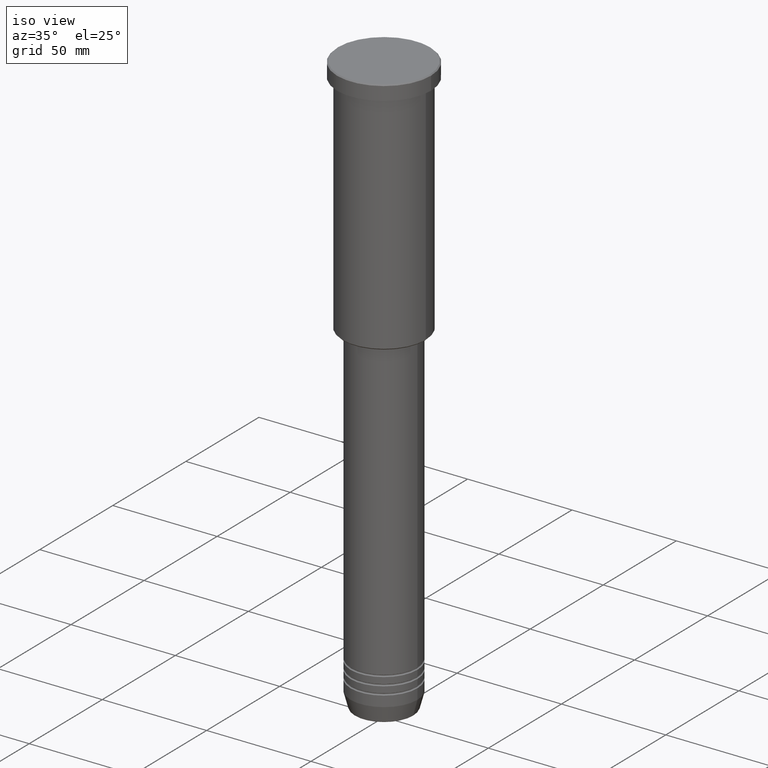
[diagram: clean part render]
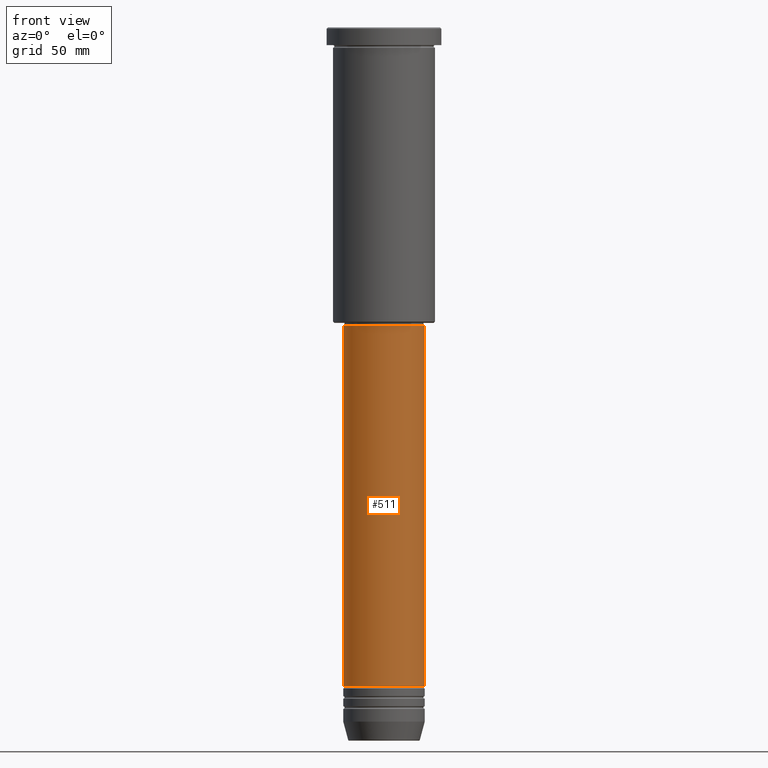
[diagram: tour spotlight — one face highlighted and labeled with its STEP entity id]
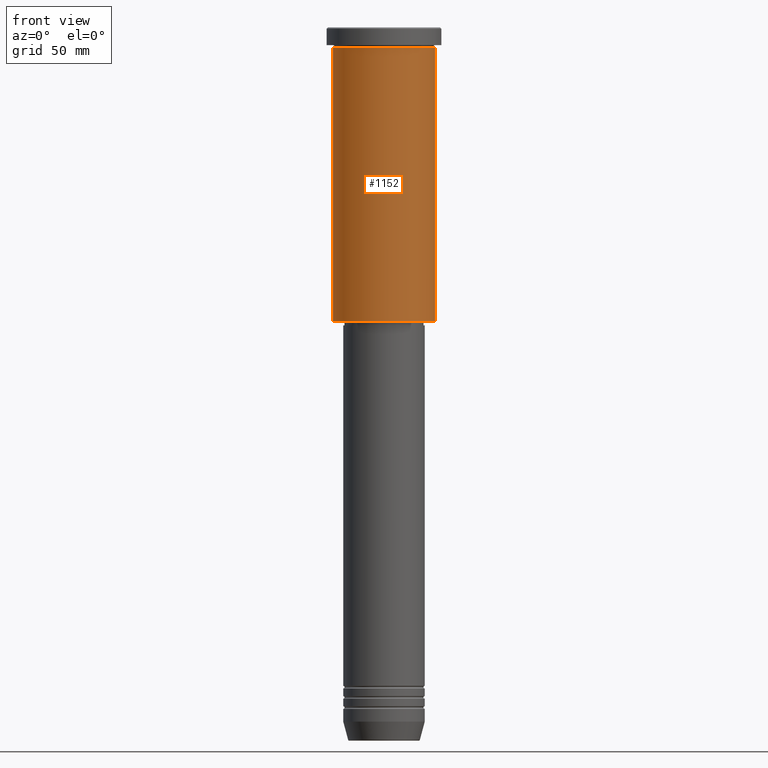
[diagram: tour spotlight — one face highlighted and labeled with its STEP entity id]
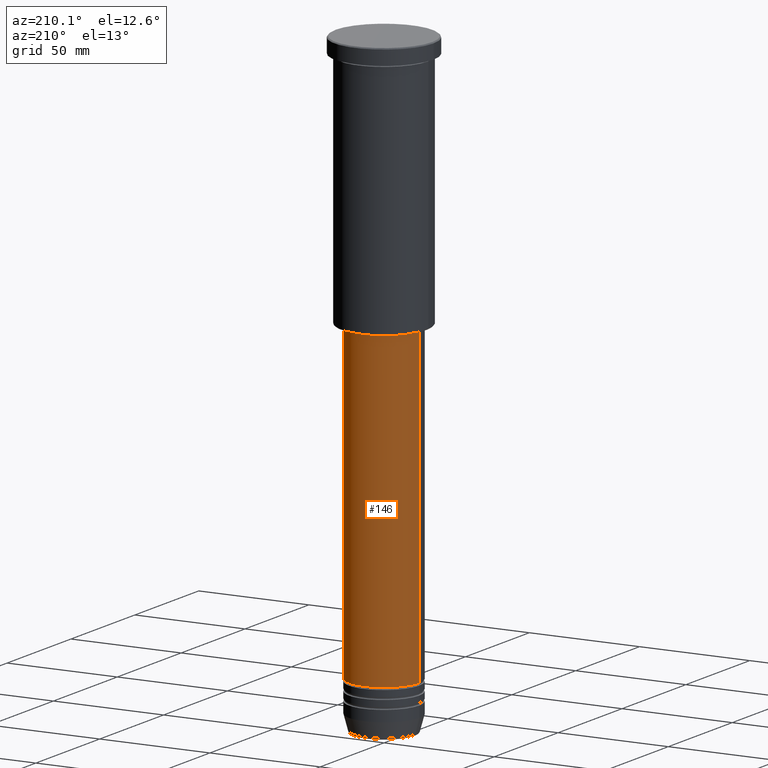
[diagram: tour spotlight — one face highlighted and labeled with its STEP entity id]
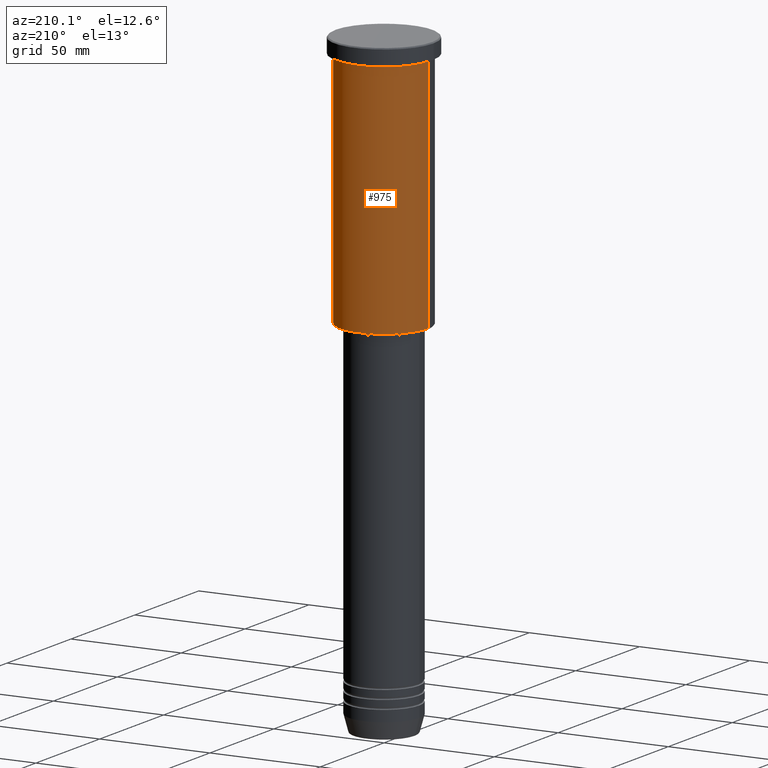
[diagram: tour spotlight — one face highlighted and labeled with its STEP entity id]
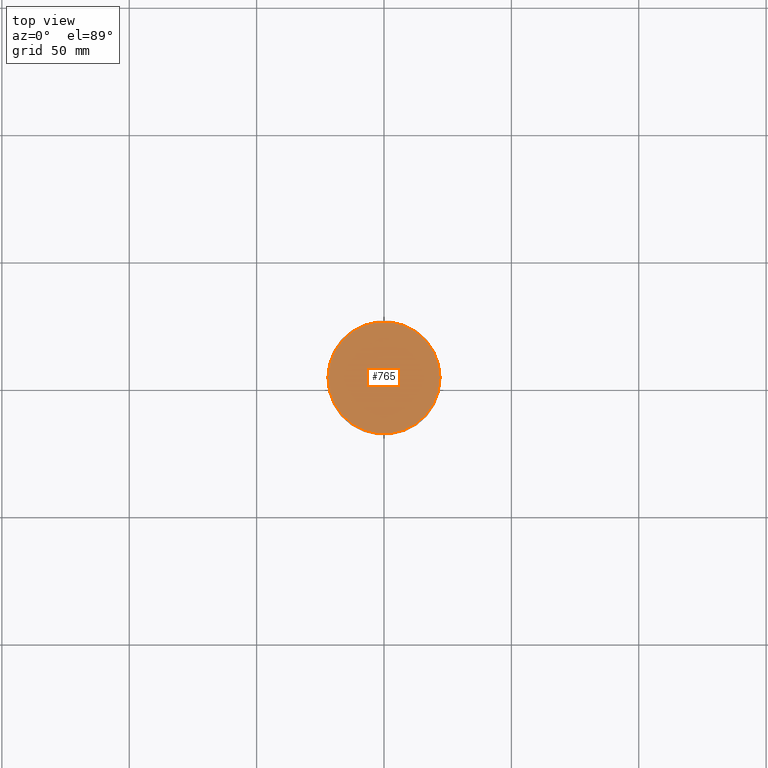
[diagram: tour spotlight — one face highlighted and labeled with its STEP entity id]
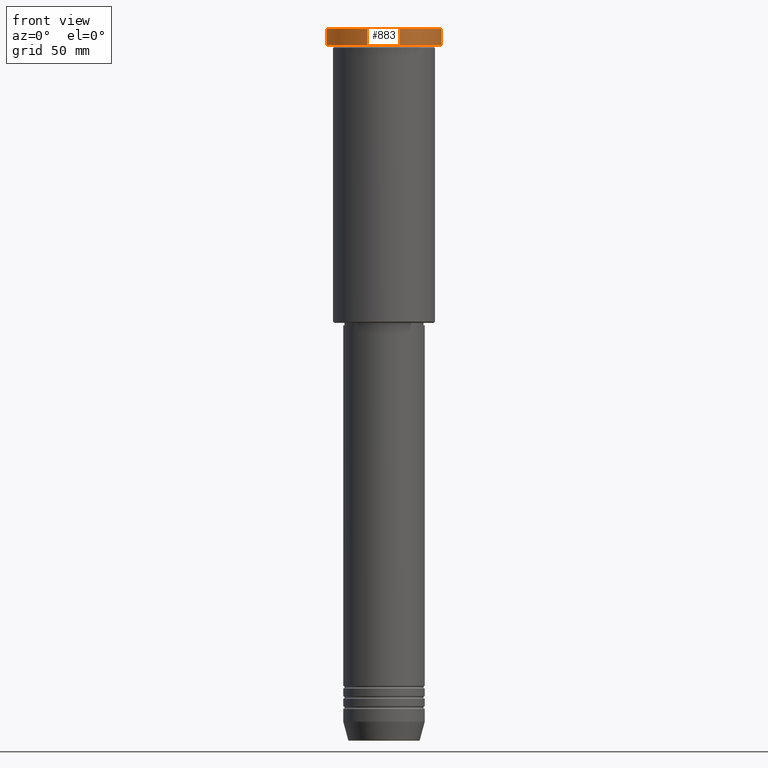
[diagram: tour spotlight — one face highlighted and labeled with its STEP entity id]
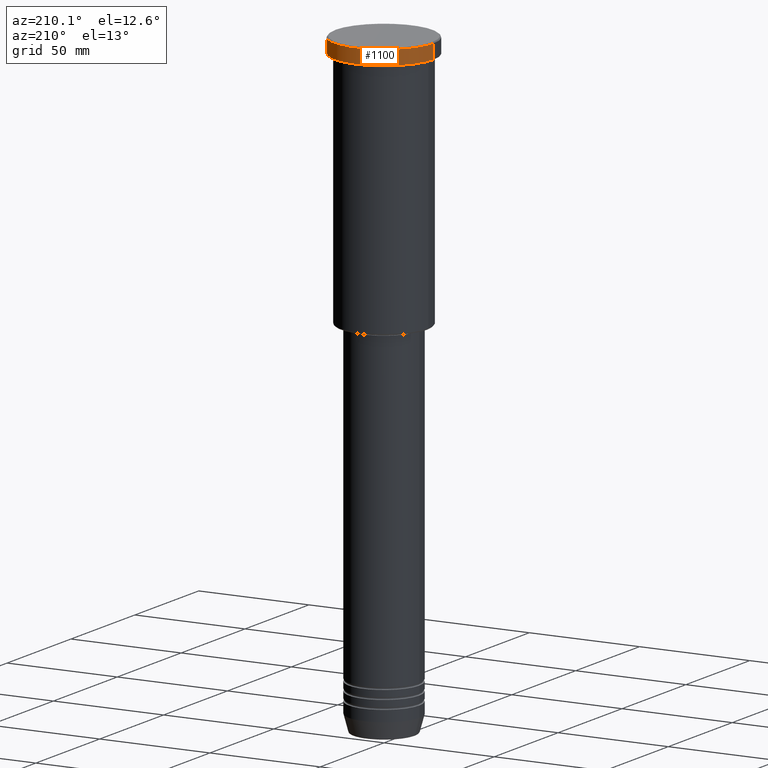
[diagram: tour spotlight — one face highlighted and labeled with its STEP entity id]
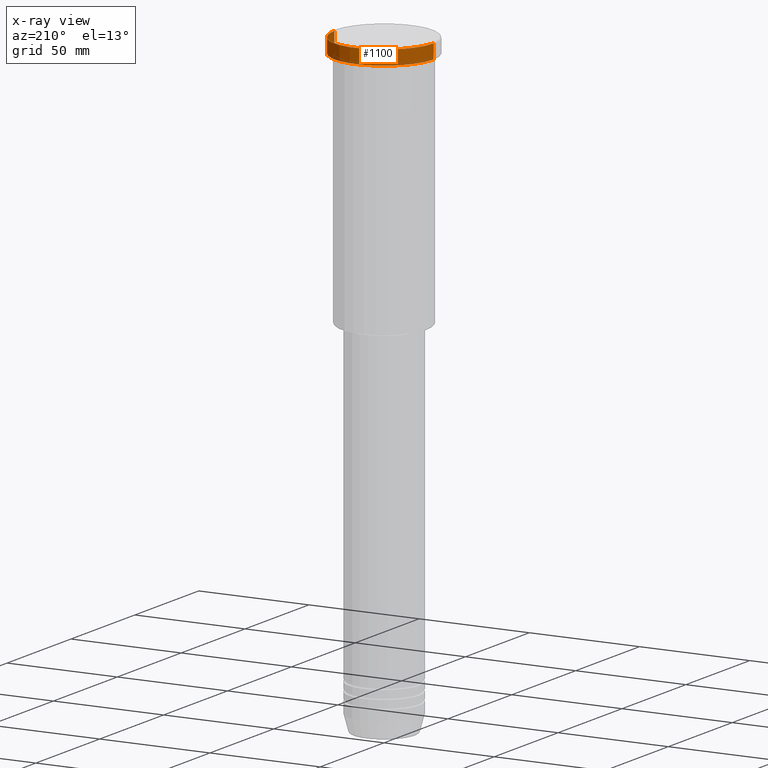
[diagram: x-ray of the same camera — body ghosted, this tour face saturated]
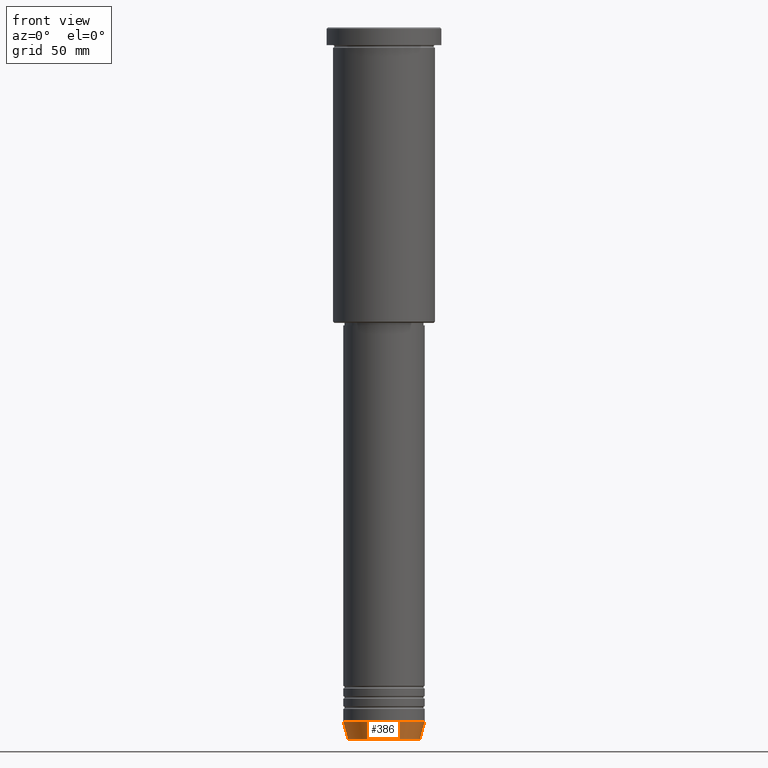
[diagram: tour spotlight — one face highlighted and labeled with its STEP entity id]
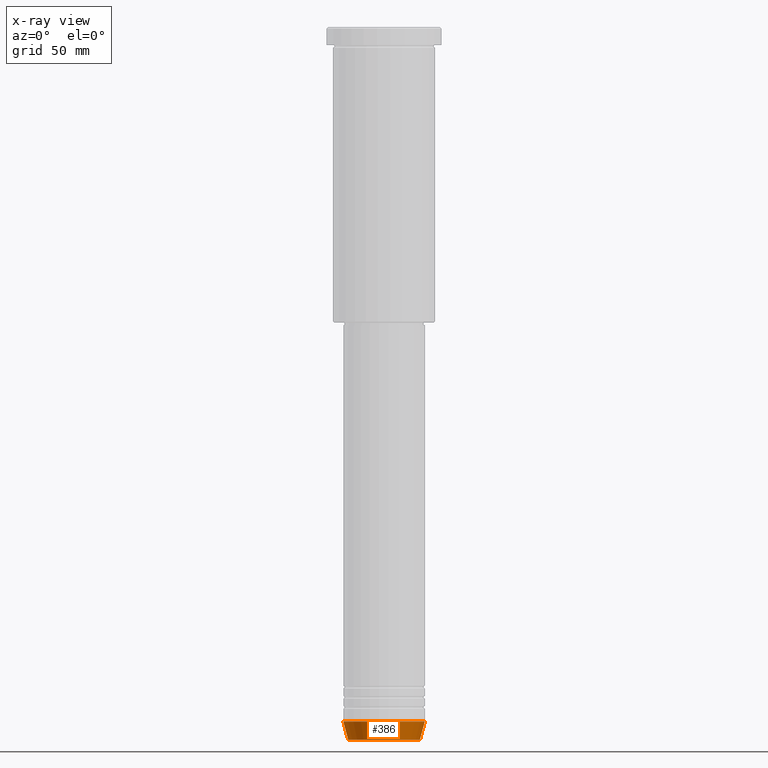
[diagram: x-ray of the same camera — body ghosted, this tour face saturated]
A machine part: a face-by-face anatomy tour. The part has 43 B-rep faces; the first image is the clean iso view, then the 8 largest visible faces are spotlighted one at a time (largest first), each with its STEP entity span.

Face 1 — front view, entity #511. In plain terms, the highlighted cylindrical surface (partial cylindrical patch) has radius 16 mm, axis along (-0, -0, 1).
Definition (entity closure, byte-faithful):
#4 = CIRCLE ( 'NONE', #815, 16.00000000000000000 ) ;
#63 = DIRECTION ( 'NONE',  ( -0.000000000000000000, -0.000000000000000000, 1.000000000000000000 ) ) ;
#136 = EDGE_CURVE ( 'NONE', #949, #867, #303, .T. ) ;
#165 = DIRECTION ( 'NONE',  ( 1.000000000000000000, 0.000000000000000000, 0.000000000000000000 ) ) ;
#168 = CARTESIAN_POINT ( 'NONE',  ( 16.00000000000000000, 0.000000000000000000, 0.000000000000000000 ) ) ;
#224 = CIRCLE ( 'NONE', #877, 16.00000000000000000 ) ;
#232 = CARTESIAN_POINT ( 'NONE',  ( -16.00000000000000000, 1.959434878635765131E-15, -258.5000000000000000 ) ) ;
#303 = LINE ( 'NONE', #807, #856 ) ;
#316 = AXIS2_PLACEMENT_3D ( 'NONE', #726, #712, #352 ) ;
#352 = DIRECTION ( 'NONE',  ( 1.000000000000000000, 0.000000000000000000, 0.000000000000000000 ) ) ;
#356 = EDGE_CURVE ( 'NONE', #949, #398, #4, .T. ) ;
#357 = FACE_OUTER_BOUND ( 'NONE', #799, .T. ) ;
#397 = DIRECTION ( 'NONE',  ( 1.000000000000000000, 0.000000000000000000, 0.000000000000000000 ) ) ;
#398 = VERTEX_POINT ( 'NONE', #963 ) ;
#445 = EDGE_CURVE ( 'NONE', #867, #687, #224, .T. ) ;
#511 = ADVANCED_FACE ( 'NONE', ( #357 ), #1086, .T. ) ;
#517 = LINE ( 'NONE', #168, #632 ) ;
#567 = ORIENTED_EDGE ( 'NONE', *, *, #1121, .T. ) ;
#580 = CARTESIAN_POINT ( 'NONE',  ( 0.000000000000000000, 0.000000000000000000, -258.5000000000000000 ) ) ;
#632 = VECTOR ( 'NONE', #785, 1000.000000000000000 ) ;
#659 = DIRECTION ( 'NONE',  ( -0.000000000000000000, -0.000000000000000000, 1.000000000000000000 ) ) ;
#682 = CARTESIAN_POINT ( 'NONE',  ( -16.00000000000000000, 1.959434878635765131E-15, -117.0000000000000000 ) ) ;
#687 = VERTEX_POINT ( 'NONE', #1007 ) ;
#712 = DIRECTION ( 'NONE',  ( -0.000000000000000000, -0.000000000000000000, 1.000000000000000000 ) ) ;
#726 = CARTESIAN_POINT ( 'NONE',  ( 0.000000000000000000, 0.000000000000000000, 0.000000000000000000 ) ) ;
#785 = DIRECTION ( 'NONE',  ( -0.000000000000000000, -0.000000000000000000, 1.000000000000000000 ) ) ;
#786 = CARTESIAN_POINT ( 'NONE',  ( 0.000000000000000000, 0.000000000000000000, -117.0000000000000000 ) ) ;
#799 = EDGE_LOOP ( 'NONE', ( #849, #1177, #567, #826 ) ) ;
#807 = CARTESIAN_POINT ( 'NONE',  ( -16.00000000000000000, 1.959434878635765131E-15, 0.000000000000000000 ) ) ;
#815 = AXIS2_PLACEMENT_3D ( 'NONE', #580, #63, #397 ) ;
#826 = ORIENTED_EDGE ( 'NONE', *, *, #445, .F. ) ;
#849 = ORIENTED_EDGE ( 'NONE', *, *, #136, .F. ) ;
#856 = VECTOR ( 'NONE', #659, 1000.000000000000000 ) ;
#867 = VERTEX_POINT ( 'NONE', #682 ) ;
#877 = AXIS2_PLACEMENT_3D ( 'NONE', #786, #1164, #165 ) ;
#949 = VERTEX_POINT ( 'NONE', #232 ) ;
#963 = CARTESIAN_POINT ( 'NONE',  ( 16.00000000000000000, 0.000000000000000000, -258.5000000000000000 ) ) ;
#1007 = CARTESIAN_POINT ( 'NONE',  ( 16.00000000000000000, 0.000000000000000000, -117.0000000000000000 ) ) ;
#1086 = CYLINDRICAL_SURFACE ( 'NONE', #316, 16.00000000000000000 ) ;
#1121 = EDGE_CURVE ( 'NONE', #398, #687, #517, .T. ) ;
#1164 = DIRECTION ( 'NONE',  ( -0.000000000000000000, -0.000000000000000000, 1.000000000000000000 ) ) ;
#1177 = ORIENTED_EDGE ( 'NONE', *, *, #356, .T. ) ;

Face 2 — front view, entity #1152. In plain terms, the highlighted cylindrical surface (partial cylindrical patch) has radius 20 mm, axis along (-0, -0, 1).
Definition (entity closure, byte-faithful):
#6 = CIRCLE ( 'NONE', #762, 20.00000000000000000 ) ;
#42 = EDGE_LOOP ( 'NONE', ( #668, #539, #832, #245 ) ) ;
#155 = CIRCLE ( 'NONE', #1110, 20.00000000000000355 ) ;
#157 = EDGE_CURVE ( 'NONE', #363, #1059, #155, .T. ) ;
#167 = VERTEX_POINT ( 'NONE', #280 ) ;
#245 = ORIENTED_EDGE ( 'NONE', *, *, #869, .F. ) ;
#280 = CARTESIAN_POINT ( 'NONE',  ( 20.00000000000000000, 0.000000000000000000, -7.999999999999994671 ) ) ;
#285 = DIRECTION ( 'NONE',  ( -0.000000000000000000, -0.000000000000000000, 1.000000000000000000 ) ) ;
#328 = DIRECTION ( 'NONE',  ( -0.000000000000000000, -0.000000000000000000, 1.000000000000000000 ) ) ;
#336 = CARTESIAN_POINT ( 'NONE',  ( -20.00000000000000000, 2.449293598294706513E-15, -7.999999999999994671 ) ) ;
#339 = DIRECTION ( 'NONE',  ( -0.000000000000000000, -0.000000000000000000, 1.000000000000000000 ) ) ;
#363 = VERTEX_POINT ( 'NONE', #940 ) ;
#407 = VECTOR ( 'NONE', #339, 1000.000000000000000 ) ;
#425 = CARTESIAN_POINT ( 'NONE',  ( 20.00000000000000355, 0.000000000000000000, -115.4999999999999432 ) ) ;
#429 = LINE ( 'NONE', #631, #407 ) ;
#449 = CARTESIAN_POINT ( 'NONE',  ( 0.000000000000000000, 0.000000000000000000, 0.000000000000000000 ) ) ;
#467 = DIRECTION ( 'NONE',  ( -0.000000000000000000, -0.000000000000000000, 1.000000000000000000 ) ) ;
#535 = CARTESIAN_POINT ( 'NONE',  ( 0.000000000000000000, 0.000000000000000000, -115.4999999999999432 ) ) ;
#539 = ORIENTED_EDGE ( 'NONE', *, *, #157, .T. ) ;
#611 = AXIS2_PLACEMENT_3D ( 'NONE', #449, #467, #1005 ) ;
#631 = CARTESIAN_POINT ( 'NONE',  ( -20.00000000000000355, 2.449293598294706907E-15, 0.000000000000000000 ) ) ;
#668 = ORIENTED_EDGE ( 'NONE', *, *, #1081, .F. ) ;
#762 = AXIS2_PLACEMENT_3D ( 'NONE', #943, #328, #1129 ) ;
#770 = LINE ( 'NONE', #1143, #1054 ) ;
#802 = FACE_OUTER_BOUND ( 'NONE', #42, .T. ) ;
#832 = ORIENTED_EDGE ( 'NONE', *, *, #1006, .T. ) ;
#850 = DIRECTION ( 'NONE',  ( -0.000000000000000000, -0.000000000000000000, 1.000000000000000000 ) ) ;
#868 = VERTEX_POINT ( 'NONE', #336 ) ;
#869 = EDGE_CURVE ( 'NONE', #868, #167, #6, .T. ) ;
#917 = CYLINDRICAL_SURFACE ( 'NONE', #611, 20.00000000000000355 ) ;
#940 = CARTESIAN_POINT ( 'NONE',  ( -20.00000000000000355, 2.449293598294706907E-15, -115.4999999999999432 ) ) ;
#943 = CARTESIAN_POINT ( 'NONE',  ( 0.000000000000000000, 0.000000000000000000, -7.999999999999994671 ) ) ;
#1005 = DIRECTION ( 'NONE',  ( 1.000000000000000000, 0.000000000000000000, 0.000000000000000000 ) ) ;
#1006 = EDGE_CURVE ( 'NONE', #1059, #167, #770, .T. ) ;
#1054 = VECTOR ( 'NONE', #850, 1000.000000000000000 ) ;
#1059 = VERTEX_POINT ( 'NONE', #425 ) ;
#1081 = EDGE_CURVE ( 'NONE', #363, #868, #429, .T. ) ;
#1104 = DIRECTION ( 'NONE',  ( -1.000000000000000000, 0.000000000000000000, 0.000000000000000000 ) ) ;
#1110 = AXIS2_PLACEMENT_3D ( 'NONE', #535, #285, #1104 ) ;
#1129 = DIRECTION ( 'NONE',  ( 1.000000000000000000, 0.000000000000000000, 0.000000000000000000 ) ) ;
#1143 = CARTESIAN_POINT ( 'NONE',  ( 20.00000000000000355, 0.000000000000000000, 0.000000000000000000 ) ) ;
#1152 = ADVANCED_FACE ( 'NONE', ( #802 ), #917, .T. ) ;

Face 3 — auxiliary view, entity #146. In plain terms, the highlighted cylindrical surface (partial cylindrical patch) has radius 16 mm, axis along (-0, -0, 1).
Definition (entity closure, byte-faithful):
#77 = ORIENTED_EDGE ( 'NONE', *, *, #236, .T. ) ;
#98 = AXIS2_PLACEMENT_3D ( 'NONE', #444, #540, #359 ) ;
#130 = ORIENTED_EDGE ( 'NONE', *, *, #1075, .F. ) ;
#136 = EDGE_CURVE ( 'NONE', #949, #867, #303, .T. ) ;
#146 = ADVANCED_FACE ( 'NONE', ( #814 ), #375, .T. ) ;
#168 = CARTESIAN_POINT ( 'NONE',  ( 16.00000000000000000, 0.000000000000000000, 0.000000000000000000 ) ) ;
#213 = DIRECTION ( 'NONE',  ( -0.000000000000000000, -0.000000000000000000, 1.000000000000000000 ) ) ;
#232 = CARTESIAN_POINT ( 'NONE',  ( -16.00000000000000000, 1.959434878635765131E-15, -258.5000000000000000 ) ) ;
#236 = EDGE_CURVE ( 'NONE', #398, #949, #315, .T. ) ;
#259 = AXIS2_PLACEMENT_3D ( 'NONE', #1169, #1085, #1154 ) ;
#303 = LINE ( 'NONE', #807, #856 ) ;
#315 = CIRCLE ( 'NONE', #98, 16.00000000000000000 ) ;
#359 = DIRECTION ( 'NONE',  ( 1.000000000000000000, 0.000000000000000000, 0.000000000000000000 ) ) ;
#375 = CYLINDRICAL_SURFACE ( 'NONE', #436, 16.00000000000000000 ) ;
#398 = VERTEX_POINT ( 'NONE', #963 ) ;
#436 = AXIS2_PLACEMENT_3D ( 'NONE', #1022, #213, #466 ) ;
#444 = CARTESIAN_POINT ( 'NONE',  ( 0.000000000000000000, 0.000000000000000000, -258.5000000000000000 ) ) ;
#466 = DIRECTION ( 'NONE',  ( 1.000000000000000000, 0.000000000000000000, 0.000000000000000000 ) ) ;
#517 = LINE ( 'NONE', #168, #632 ) ;
#532 = CIRCLE ( 'NONE', #259, 16.00000000000000000 ) ;
#540 = DIRECTION ( 'NONE',  ( -0.000000000000000000, -0.000000000000000000, 1.000000000000000000 ) ) ;
#632 = VECTOR ( 'NONE', #785, 1000.000000000000000 ) ;
#659 = DIRECTION ( 'NONE',  ( -0.000000000000000000, -0.000000000000000000, 1.000000000000000000 ) ) ;
#682 = CARTESIAN_POINT ( 'NONE',  ( -16.00000000000000000, 1.959434878635765131E-15, -117.0000000000000000 ) ) ;
#687 = VERTEX_POINT ( 'NONE', #1007 ) ;
#766 = ORIENTED_EDGE ( 'NONE', *, *, #136, .T. ) ;
#785 = DIRECTION ( 'NONE',  ( -0.000000000000000000, -0.000000000000000000, 1.000000000000000000 ) ) ;
#807 = CARTESIAN_POINT ( 'NONE',  ( -16.00000000000000000, 1.959434878635765131E-15, 0.000000000000000000 ) ) ;
#814 = FACE_OUTER_BOUND ( 'NONE', #1114, .T. ) ;
#841 = ORIENTED_EDGE ( 'NONE', *, *, #1121, .F. ) ;
#856 = VECTOR ( 'NONE', #659, 1000.000000000000000 ) ;
#867 = VERTEX_POINT ( 'NONE', #682 ) ;
#949 = VERTEX_POINT ( 'NONE', #232 ) ;
#963 = CARTESIAN_POINT ( 'NONE',  ( 16.00000000000000000, 0.000000000000000000, -258.5000000000000000 ) ) ;
#1007 = CARTESIAN_POINT ( 'NONE',  ( 16.00000000000000000, 0.000000000000000000, -117.0000000000000000 ) ) ;
#1022 = CARTESIAN_POINT ( 'NONE',  ( 0.000000000000000000, 0.000000000000000000, 0.000000000000000000 ) ) ;
#1075 = EDGE_CURVE ( 'NONE', #687, #867, #532, .T. ) ;
#1085 = DIRECTION ( 'NONE',  ( -0.000000000000000000, -0.000000000000000000, 1.000000000000000000 ) ) ;
#1114 = EDGE_LOOP ( 'NONE', ( #77, #766, #130, #841 ) ) ;
#1121 = EDGE_CURVE ( 'NONE', #398, #687, #517, .T. ) ;
#1154 = DIRECTION ( 'NONE',  ( 1.000000000000000000, 0.000000000000000000, 0.000000000000000000 ) ) ;
#1169 = CARTESIAN_POINT ( 'NONE',  ( 0.000000000000000000, 0.000000000000000000, -117.0000000000000000 ) ) ;

Face 4 — auxiliary view, entity #975. In plain terms, the highlighted cylindrical surface (partial cylindrical patch) has radius 20 mm, axis along (-0, -0, 1).
Definition (entity closure, byte-faithful):
#47 = DIRECTION ( 'NONE',  ( 1.000000000000000000, 0.000000000000000000, 0.000000000000000000 ) ) ;
#87 = DIRECTION ( 'NONE',  ( -0.000000000000000000, -0.000000000000000000, 1.000000000000000000 ) ) ;
#141 = AXIS2_PLACEMENT_3D ( 'NONE', #962, #508, #47 ) ;
#152 = CYLINDRICAL_SURFACE ( 'NONE', #141, 20.00000000000000355 ) ;
#166 = EDGE_CURVE ( 'NONE', #167, #868, #933, .T. ) ;
#167 = VERTEX_POINT ( 'NONE', #280 ) ;
#212 = DIRECTION ( 'NONE',  ( 1.000000000000000000, 0.000000000000000000, 0.000000000000000000 ) ) ;
#280 = CARTESIAN_POINT ( 'NONE',  ( 20.00000000000000000, 0.000000000000000000, -7.999999999999994671 ) ) ;
#299 = CIRCLE ( 'NONE', #629, 20.00000000000000355 ) ;
#329 = EDGE_CURVE ( 'NONE', #1059, #363, #299, .T. ) ;
#336 = CARTESIAN_POINT ( 'NONE',  ( -20.00000000000000000, 2.449293598294706513E-15, -7.999999999999994671 ) ) ;
#339 = DIRECTION ( 'NONE',  ( -0.000000000000000000, -0.000000000000000000, 1.000000000000000000 ) ) ;
#363 = VERTEX_POINT ( 'NONE', #940 ) ;
#391 = DIRECTION ( 'NONE',  ( -0.000000000000000000, -0.000000000000000000, 1.000000000000000000 ) ) ;
#407 = VECTOR ( 'NONE', #339, 1000.000000000000000 ) ;
#425 = CARTESIAN_POINT ( 'NONE',  ( 20.00000000000000355, 0.000000000000000000, -115.4999999999999432 ) ) ;
#429 = LINE ( 'NONE', #631, #407 ) ;
#508 = DIRECTION ( 'NONE',  ( -0.000000000000000000, -0.000000000000000000, 1.000000000000000000 ) ) ;
#509 = CARTESIAN_POINT ( 'NONE',  ( 0.000000000000000000, 0.000000000000000000, -115.4999999999999432 ) ) ;
#523 = ORIENTED_EDGE ( 'NONE', *, *, #329, .T. ) ;
#605 = ORIENTED_EDGE ( 'NONE', *, *, #1006, .F. ) ;
#629 = AXIS2_PLACEMENT_3D ( 'NONE', #509, #391, #1150 ) ;
#631 = CARTESIAN_POINT ( 'NONE',  ( -20.00000000000000355, 2.449293598294706907E-15, 0.000000000000000000 ) ) ;
#714 = CARTESIAN_POINT ( 'NONE',  ( 0.000000000000000000, 0.000000000000000000, -7.999999999999994671 ) ) ;
#770 = LINE ( 'NONE', #1143, #1054 ) ;
#850 = DIRECTION ( 'NONE',  ( -0.000000000000000000, -0.000000000000000000, 1.000000000000000000 ) ) ;
#868 = VERTEX_POINT ( 'NONE', #336 ) ;
#933 = CIRCLE ( 'NONE', #967, 20.00000000000000000 ) ;
#940 = CARTESIAN_POINT ( 'NONE',  ( -20.00000000000000355, 2.449293598294706907E-15, -115.4999999999999432 ) ) ;
#944 = EDGE_LOOP ( 'NONE', ( #523, #1064, #994, #605 ) ) ;
#962 = CARTESIAN_POINT ( 'NONE',  ( 0.000000000000000000, 0.000000000000000000, 0.000000000000000000 ) ) ;
#967 = AXIS2_PLACEMENT_3D ( 'NONE', #714, #87, #212 ) ;
#975 = ADVANCED_FACE ( 'NONE', ( #1135 ), #152, .T. ) ;
#994 = ORIENTED_EDGE ( 'NONE', *, *, #166, .F. ) ;
#1006 = EDGE_CURVE ( 'NONE', #1059, #167, #770, .T. ) ;
#1054 = VECTOR ( 'NONE', #850, 1000.000000000000000 ) ;
#1059 = VERTEX_POINT ( 'NONE', #425 ) ;
#1064 = ORIENTED_EDGE ( 'NONE', *, *, #1081, .T. ) ;
#1081 = EDGE_CURVE ( 'NONE', #363, #868, #429, .T. ) ;
#1135 = FACE_OUTER_BOUND ( 'NONE', #944, .T. ) ;
#1143 = CARTESIAN_POINT ( 'NONE',  ( 20.00000000000000355, 0.000000000000000000, 0.000000000000000000 ) ) ;
#1150 = DIRECTION ( 'NONE',  ( -1.000000000000000000, 0.000000000000000000, 0.000000000000000000 ) ) ;

Face 5 — top view, entity #765. In plain terms, the highlighted planar face has unit normal (0, -0, 1).
Definition (entity closure, byte-faithful):
#270 = VERTEX_POINT ( 'NONE', #626 ) ;
#310 = DIRECTION ( 'NONE',  ( 0.000000000000000000, -0.000000000000000000, 1.000000000000000000 ) ) ;
#331 = EDGE_LOOP ( 'NONE', ( #1061, #1171 ) ) ;
#377 = CARTESIAN_POINT ( 'NONE',  ( 0.000000000000000000, 0.000000000000000000, 0.000000000000000000 ) ) ;
#469 = CARTESIAN_POINT ( 'NONE',  ( -22.00000000000004619, 0.000000000000000000, 0.000000000000000000 ) ) ;
#477 = FACE_OUTER_BOUND ( 'NONE', #331, .T. ) ;
#481 = DIRECTION ( 'NONE',  ( 1.000000000000000000, 0.000000000000000000, 0.000000000000000000 ) ) ;
#554 = CIRCLE ( 'NONE', #939, 22.00000000000004619 ) ;
#561 = DIRECTION ( 'NONE',  ( -0.000000000000000000, -0.000000000000000000, 1.000000000000000000 ) ) ;
#626 = CARTESIAN_POINT ( 'NONE',  ( 22.00000000000004619, 2.724839128102864146E-15, 0.000000000000000000 ) ) ;
#642 = VERTEX_POINT ( 'NONE', #469 ) ;
#683 = EDGE_CURVE ( 'NONE', #270, #642, #744, .T. ) ;
#744 = CIRCLE ( 'NONE', #1070, 22.00000000000004619 ) ;
#746 = DIRECTION ( 'NONE',  ( 1.000000000000000000, 0.000000000000000000, 0.000000000000000000 ) ) ;
#765 = ADVANCED_FACE ( 'NONE', ( #477 ), #822, .T. ) ;
#822 = PLANE ( 'NONE',  #1038 ) ;
#904 = CARTESIAN_POINT ( 'NONE',  ( 0.000000000000000000, 0.000000000000000000, 0.000000000000000000 ) ) ;
#924 = DIRECTION ( 'NONE',  ( 1.000000000000000000, 0.000000000000000000, 0.000000000000000000 ) ) ;
#939 = AXIS2_PLACEMENT_3D ( 'NONE', #904, #1094, #481 ) ;
#1038 = AXIS2_PLACEMENT_3D ( 'NONE', #1183, #310, #746 ) ;
#1061 = ORIENTED_EDGE ( 'NONE', *, *, #1175, .T. ) ;
#1070 = AXIS2_PLACEMENT_3D ( 'NONE', #377, #561, #924 ) ;
#1094 = DIRECTION ( 'NONE',  ( -0.000000000000000000, -0.000000000000000000, 1.000000000000000000 ) ) ;
#1171 = ORIENTED_EDGE ( 'NONE', *, *, #683, .T. ) ;
#1175 = EDGE_CURVE ( 'NONE', #642, #270, #554, .T. ) ;
#1183 = CARTESIAN_POINT ( 'NONE',  ( 0.000000000000000000, 0.000000000000000000, 0.000000000000000000 ) ) ;

Face 6 — front view, entity #883. In plain terms, the highlighted cylindrical surface (partial cylindrical patch) has radius 22.5 mm, axis along (-0, -0, 1).
Definition (entity closure, byte-faithful):
#29 = AXIS2_PLACEMENT_3D ( 'NONE', #821, #476, #190 ) ;
#66 = CARTESIAN_POINT ( 'NONE',  ( 22.50000000000000000, 0.000000000000000000, 0.000000000000000000 ) ) ;
#89 = VERTEX_POINT ( 'NONE', #1004 ) ;
#190 = DIRECTION ( 'NONE',  ( 1.000000000000000000, 0.000000000000000000, 0.000000000000000000 ) ) ;
#201 = AXIS2_PLACEMENT_3D ( 'NONE', #243, #591, #323 ) ;
#225 = CIRCLE ( 'NONE', #29, 22.50000000000000000 ) ;
#243 = CARTESIAN_POINT ( 'NONE',  ( 0.000000000000000000, 0.000000000000000000, -0.4999999999999379940 ) ) ;
#256 = VECTOR ( 'NONE', #948, 1000.000000000000000 ) ;
#277 = AXIS2_PLACEMENT_3D ( 'NONE', #871, #402, #495 ) ;
#291 = ORIENTED_EDGE ( 'NONE', *, *, #910, .F. ) ;
#323 = DIRECTION ( 'NONE',  ( 1.000000000000000000, 0.000000000000000000, 0.000000000000000000 ) ) ;
#372 = ORIENTED_EDGE ( 'NONE', *, *, #675, .T. ) ;
#373 = VECTOR ( 'NONE', #978, 1000.000000000000000 ) ;
#402 = DIRECTION ( 'NONE',  ( -0.000000000000000000, -0.000000000000000000, 1.000000000000000000 ) ) ;
#476 = DIRECTION ( 'NONE',  ( -0.000000000000000000, -0.000000000000000000, 1.000000000000000000 ) ) ;
#489 = CARTESIAN_POINT ( 'NONE',  ( -22.50000000000000000, 2.755455298081544778E-15, -0.4999999999999379940 ) ) ;
#495 = DIRECTION ( 'NONE',  ( 1.000000000000000000, 0.000000000000000000, 0.000000000000000000 ) ) ;
#503 = FACE_OUTER_BOUND ( 'NONE', #1141, .T. ) ;
#584 = ORIENTED_EDGE ( 'NONE', *, *, #1042, .T. ) ;
#591 = DIRECTION ( 'NONE',  ( 0.000000000000000000, 0.000000000000000000, -1.000000000000000000 ) ) ;
#599 = CARTESIAN_POINT ( 'NONE',  ( -22.50000000000000000, 2.755455298081544778E-15, 0.000000000000000000 ) ) ;
#675 = EDGE_CURVE ( 'NONE', #89, #772, #225, .T. ) ;
#772 = VERTEX_POINT ( 'NONE', #830 ) ;
#779 = CIRCLE ( 'NONE', #201, 22.50000000000000000 ) ;
#805 = VERTEX_POINT ( 'NONE', #489 ) ;
#821 = CARTESIAN_POINT ( 'NONE',  ( 0.000000000000000000, 0.000000000000000000, -6.999999999999995559 ) ) ;
#830 = CARTESIAN_POINT ( 'NONE',  ( 22.50000000000000000, 0.000000000000000000, -6.999999999999995559 ) ) ;
#860 = CYLINDRICAL_SURFACE ( 'NONE', #277, 22.50000000000000000 ) ;
#871 = CARTESIAN_POINT ( 'NONE',  ( 0.000000000000000000, 0.000000000000000000, 0.000000000000000000 ) ) ;
#883 = ADVANCED_FACE ( 'NONE', ( #503 ), #860, .T. ) ;
#889 = LINE ( 'NONE', #66, #373 ) ;
#896 = EDGE_CURVE ( 'NONE', #1027, #805, #779, .T. ) ;
#910 = EDGE_CURVE ( 'NONE', #89, #805, #1051, .T. ) ;
#948 = DIRECTION ( 'NONE',  ( -0.000000000000000000, -0.000000000000000000, 1.000000000000000000 ) ) ;
#978 = DIRECTION ( 'NONE',  ( -0.000000000000000000, -0.000000000000000000, 1.000000000000000000 ) ) ;
#1004 = CARTESIAN_POINT ( 'NONE',  ( -22.50000000000000000, 2.755455298081544778E-15, -6.999999999999995559 ) ) ;
#1027 = VERTEX_POINT ( 'NONE', #1073 ) ;
#1042 = EDGE_CURVE ( 'NONE', #772, #1027, #889, .T. ) ;
#1051 = LINE ( 'NONE', #599, #256 ) ;
#1073 = CARTESIAN_POINT ( 'NONE',  ( 22.50000000000000000, 0.000000000000000000, -0.4999999999999379940 ) ) ;
#1131 = ORIENTED_EDGE ( 'NONE', *, *, #896, .T. ) ;
#1141 = EDGE_LOOP ( 'NONE', ( #291, #372, #584, #1131 ) ) ;

Face 7 — auxiliary view, entity #1100. An x-ray twin of the same camera follows (body ghosted, this face saturated) — the face is partly hidden behind the body. In plain terms, the highlighted cylindrical surface (partial cylindrical patch) has radius 22.5 mm, axis along (-0, -0, 1).
Definition (entity closure, byte-faithful):
#23 = CARTESIAN_POINT ( 'NONE',  ( 0.000000000000000000, 0.000000000000000000, -0.4999999999999379940 ) ) ;
#66 = CARTESIAN_POINT ( 'NONE',  ( 22.50000000000000000, 0.000000000000000000, 0.000000000000000000 ) ) ;
#89 = VERTEX_POINT ( 'NONE', #1004 ) ;
#180 = CIRCLE ( 'NONE', #301, 22.50000000000000000 ) ;
#196 = DIRECTION ( 'NONE',  ( 1.000000000000000000, 0.000000000000000000, 0.000000000000000000 ) ) ;
#223 = EDGE_LOOP ( 'NONE', ( #574, #1030, #979, #415 ) ) ;
#249 = DIRECTION ( 'NONE',  ( -0.000000000000000000, -0.000000000000000000, 1.000000000000000000 ) ) ;
#256 = VECTOR ( 'NONE', #948, 1000.000000000000000 ) ;
#267 = CARTESIAN_POINT ( 'NONE',  ( 0.000000000000000000, 0.000000000000000000, 0.000000000000000000 ) ) ;
#275 = FACE_OUTER_BOUND ( 'NONE', #223, .T. ) ;
#276 = CIRCLE ( 'NONE', #743, 22.50000000000000000 ) ;
#301 = AXIS2_PLACEMENT_3D ( 'NONE', #23, #457, #196 ) ;
#320 = EDGE_CURVE ( 'NONE', #772, #89, #276, .T. ) ;
#373 = VECTOR ( 'NONE', #978, 1000.000000000000000 ) ;
#415 = ORIENTED_EDGE ( 'NONE', *, *, #1042, .F. ) ;
#457 = DIRECTION ( 'NONE',  ( 0.000000000000000000, 0.000000000000000000, -1.000000000000000000 ) ) ;
#462 = AXIS2_PLACEMENT_3D ( 'NONE', #267, #992, #707 ) ;
#489 = CARTESIAN_POINT ( 'NONE',  ( -22.50000000000000000, 2.755455298081544778E-15, -0.4999999999999379940 ) ) ;
#512 = CYLINDRICAL_SURFACE ( 'NONE', #462, 22.50000000000000000 ) ;
#574 = ORIENTED_EDGE ( 'NONE', *, *, #320, .T. ) ;
#599 = CARTESIAN_POINT ( 'NONE',  ( -22.50000000000000000, 2.755455298081544778E-15, 0.000000000000000000 ) ) ;
#684 = CARTESIAN_POINT ( 'NONE',  ( 0.000000000000000000, 0.000000000000000000, -6.999999999999995559 ) ) ;
#707 = DIRECTION ( 'NONE',  ( 1.000000000000000000, 0.000000000000000000, 0.000000000000000000 ) ) ;
#743 = AXIS2_PLACEMENT_3D ( 'NONE', #684, #249, #1053 ) ;
#772 = VERTEX_POINT ( 'NONE', #830 ) ;
#805 = VERTEX_POINT ( 'NONE', #489 ) ;
#830 = CARTESIAN_POINT ( 'NONE',  ( 22.50000000000000000, 0.000000000000000000, -6.999999999999995559 ) ) ;
#889 = LINE ( 'NONE', #66, #373 ) ;
#910 = EDGE_CURVE ( 'NONE', #89, #805, #1051, .T. ) ;
#948 = DIRECTION ( 'NONE',  ( -0.000000000000000000, -0.000000000000000000, 1.000000000000000000 ) ) ;
#978 = DIRECTION ( 'NONE',  ( -0.000000000000000000, -0.000000000000000000, 1.000000000000000000 ) ) ;
#979 = ORIENTED_EDGE ( 'NONE', *, *, #1168, .T. ) ;
#992 = DIRECTION ( 'NONE',  ( -0.000000000000000000, -0.000000000000000000, 1.000000000000000000 ) ) ;
#1004 = CARTESIAN_POINT ( 'NONE',  ( -22.50000000000000000, 2.755455298081544778E-15, -6.999999999999995559 ) ) ;
#1027 = VERTEX_POINT ( 'NONE', #1073 ) ;
#1030 = ORIENTED_EDGE ( 'NONE', *, *, #910, .T. ) ;
#1042 = EDGE_CURVE ( 'NONE', #772, #1027, #889, .T. ) ;
#1051 = LINE ( 'NONE', #599, #256 ) ;
#1053 = DIRECTION ( 'NONE',  ( 1.000000000000000000, 0.000000000000000000, 0.000000000000000000 ) ) ;
#1073 = CARTESIAN_POINT ( 'NONE',  ( 22.50000000000000000, 0.000000000000000000, -0.4999999999999379940 ) ) ;
#1100 = ADVANCED_FACE ( 'NONE', ( #275 ), #512, .T. ) ;
#1168 = EDGE_CURVE ( 'NONE', #805, #1027, #180, .T. ) ;

Face 8 — front view, entity #386. An x-ray twin of the same camera follows (body ghosted, this face saturated) — the face is partly hidden behind the body. In plain terms, the highlighted conical surface has half-angle 15 deg.
Definition (entity closure, byte-faithful):
#51 = FACE_OUTER_BOUND ( 'NONE', #892, .T. ) ;
#67 = DIRECTION ( 'NONE',  ( -0.2588190451025213501, 3.169619151431772337E-17, 0.9659258262890680902 ) ) ;
#110 = EDGE_CURVE ( 'NONE', #997, #863, #286, .T. ) ;
#117 = DIRECTION ( 'NONE',  ( -0.000000000000000000, -0.000000000000000000, 1.000000000000000000 ) ) ;
#138 = VECTOR ( 'NONE', #735, 1000.000000000000000 ) ;
#149 = ORIENTED_EDGE ( 'NONE', *, *, #110, .T. ) ;
#186 = ORIENTED_EDGE ( 'NONE', *, *, #325, .F. ) ;
#229 = ORIENTED_EDGE ( 'NONE', *, *, #438, .F. ) ;
#248 = CARTESIAN_POINT ( 'NONE',  ( 0.000000000000000000, 0.000000000000000000, -279.6294095225512706 ) ) ;
#286 = LINE ( 'NONE', #448, #138 ) ;
#325 = EDGE_CURVE ( 'NONE', #568, #863, #1013, .T. ) ;
#326 = DIRECTION ( 'NONE',  ( -0.000000000000000000, -0.000000000000000000, 1.000000000000000000 ) ) ;
#333 = VECTOR ( 'NONE', #67, 1000.000000000000000 ) ;
#386 = ADVANCED_FACE ( 'NONE', ( #51 ), #1133, .T. ) ;
#418 = DIRECTION ( 'NONE',  ( 1.000000000000000000, 0.000000000000000000, 0.000000000000000000 ) ) ;
#438 = EDGE_CURVE ( 'NONE', #982, #568, #696, .T. ) ;
#448 = CARTESIAN_POINT ( 'NONE',  ( 16.00000000000000000, 0.000000000000000000, -272.5000000000000000 ) ) ;
#516 = AXIS2_PLACEMENT_3D ( 'NONE', #248, #326, #418 ) ;
#522 = CARTESIAN_POINT ( 'NONE',  ( -16.00000000000000000, 1.959434878635765131E-15, -272.5000000000000000 ) ) ;
#568 = VERTEX_POINT ( 'NONE', #522 ) ;
#569 = CARTESIAN_POINT ( 'NONE',  ( 16.00000000000000000, 0.000000000000000000, -272.5000000000000000 ) ) ;
#570 = CARTESIAN_POINT ( 'NONE',  ( 0.000000000000000000, 0.000000000000000000, -272.5000000000000000 ) ) ;
#604 = DIRECTION ( 'NONE',  ( 1.000000000000000000, 0.000000000000000000, 0.000000000000000000 ) ) ;
#670 = AXIS2_PLACEMENT_3D ( 'NONE', #570, #117, #604 ) ;
#696 = LINE ( 'NONE', #1159, #333 ) ;
#735 = DIRECTION ( 'NONE',  ( 0.2588190451025213501, 0.000000000000000000, 0.9659258262890680902 ) ) ;
#774 = CARTESIAN_POINT ( 'NONE',  ( -14.08968047592161632, 1.842461544110200874E-15, -279.6294095225512706 ) ) ;
#848 = DIRECTION ( 'NONE',  ( 1.000000000000000000, 0.000000000000000000, 0.000000000000000000 ) ) ;
#863 = VERTEX_POINT ( 'NONE', #569 ) ;
#866 = CARTESIAN_POINT ( 'NONE',  ( 0.000000000000000000, 0.000000000000000000, -272.5000000000000000 ) ) ;
#892 = EDGE_LOOP ( 'NONE', ( #229, #1055, #149, #186 ) ) ;
#981 = EDGE_CURVE ( 'NONE', #982, #997, #1167, .T. ) ;
#982 = VERTEX_POINT ( 'NONE', #774 ) ;
#997 = VERTEX_POINT ( 'NONE', #1046 ) ;
#1013 = CIRCLE ( 'NONE', #1089, 16.00000000000000000 ) ;
#1046 = CARTESIAN_POINT ( 'NONE',  ( 14.08968047592161632, 0.000000000000000000, -279.6294095225512706 ) ) ;
#1055 = ORIENTED_EDGE ( 'NONE', *, *, #981, .T. ) ;
#1063 = DIRECTION ( 'NONE',  ( -0.000000000000000000, -0.000000000000000000, 1.000000000000000000 ) ) ;
#1089 = AXIS2_PLACEMENT_3D ( 'NONE', #866, #1063, #848 ) ;
#1133 = CONICAL_SURFACE ( 'NONE', #670, 16.00000000000000000, 0.2617993877991500740 ) ;
#1159 = CARTESIAN_POINT ( 'NONE',  ( -16.00000000000000000, 1.959434878635765131E-15, -272.5000000000000000 ) ) ;
#1167 = CIRCLE ( 'NONE', #516, 14.08968047592161632 ) ;